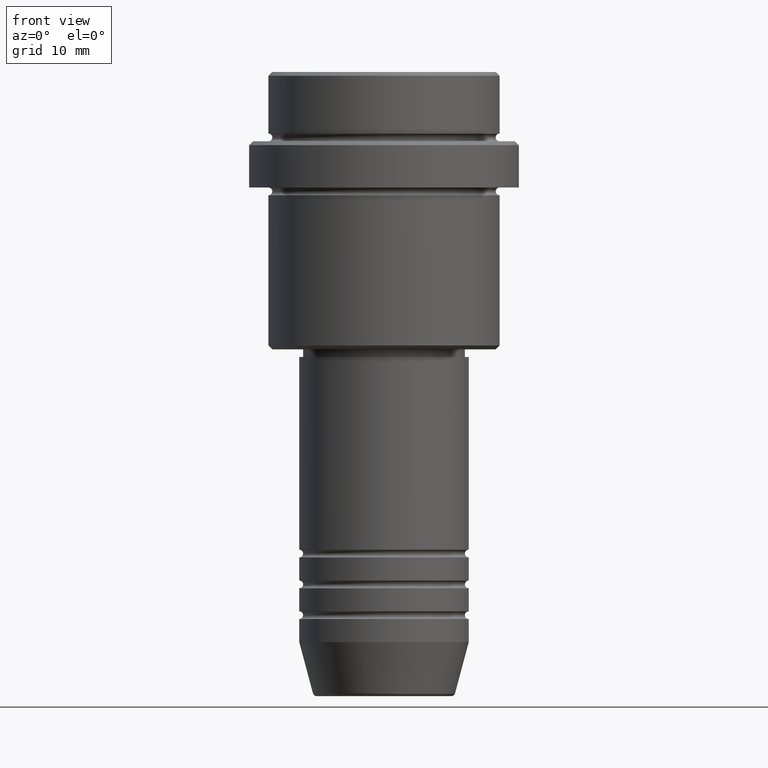
[diagram: clean part render]
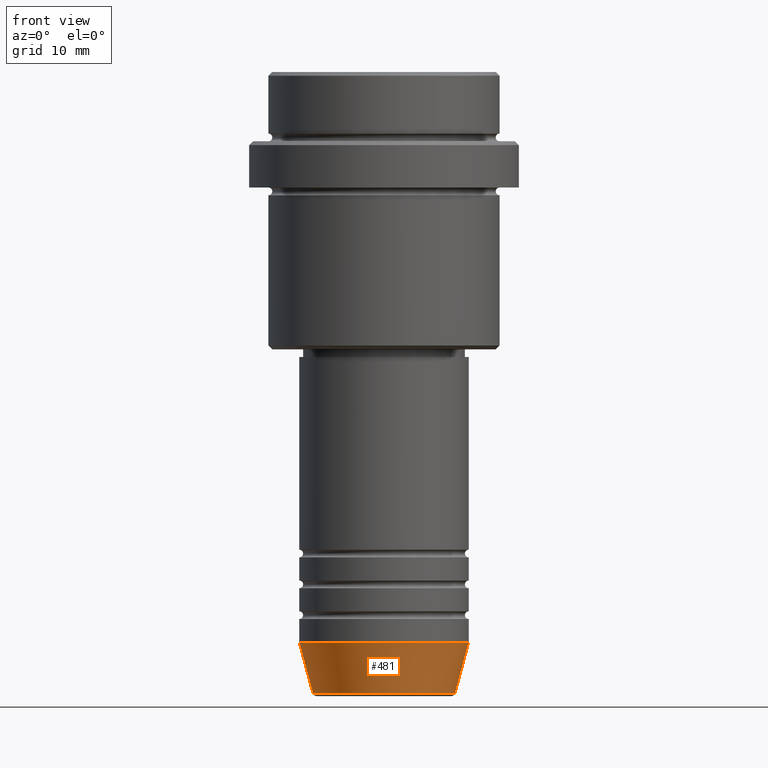
[diagram: same view with one face highlighted and labeled with its STEP entity id]
A machine part, front view. The second image highlights one B-rep face of the part: STEP entity #481.
In plain terms, the highlighted conical surface has half-angle 15 deg.
Its self-contained STEP definition (entity closure, byte-faithful):
#26 = CARTESIAN_POINT ( 'NONE',  ( 11.00000000000000000, 0.000000000000000000, -74.00000000000000000 ) ) ;
#50 = ORIENTED_EDGE ( 'NONE', *, *, #161, .F. ) ;
#129 = CONICAL_SURFACE ( 'NONE', #835, 11.00000000000000000, 0.2617993877991500740 ) ;
#144 = CARTESIAN_POINT ( 'NONE',  ( -11.00000000000000000, 1.347111479062088405E-15, -74.00000000000000000 ) ) ;
#153 = AXIS2_PLACEMENT_3D ( 'NONE', #332, #1180, #1073 ) ;
#161 = EDGE_CURVE ( 'NONE', #479, #1383, #693, .T. ) ;
#176 = CIRCLE ( 'NONE', #218, 9.223655072137194821 ) ;
#187 = DIRECTION ( 'NONE',  ( -0.000000000000000000, -0.000000000000000000, 1.000000000000000000 ) ) ;
#201 = DIRECTION ( 'NONE',  ( 1.000000000000000000, 0.000000000000000000, 0.000000000000000000 ) ) ;
#218 = AXIS2_PLACEMENT_3D ( 'NONE', #1372, #258, #270 ) ;
#241 = VECTOR ( 'NONE', #1236, 1000.000000000000000 ) ;
#258 = DIRECTION ( 'NONE',  ( -0.000000000000000000, -0.000000000000000000, 1.000000000000000000 ) ) ;
#270 = DIRECTION ( 'NONE',  ( 1.000000000000000000, 0.000000000000000000, 0.000000000000000000 ) ) ;
#301 = LINE ( 'NONE', #1169, #976 ) ;
#332 = CARTESIAN_POINT ( 'NONE',  ( 0.000000000000000000, 0.000000000000000000, -74.00000000000000000 ) ) ;
#435 = FACE_OUTER_BOUND ( 'NONE', #708, .T. ) ;
#479 = VERTEX_POINT ( 'NONE', #643 ) ;
#481 = ADVANCED_FACE ( 'NONE', ( #435 ), #129, .T. ) ;
#598 = ORIENTED_EDGE ( 'NONE', *, *, #1213, .T. ) ;
#643 = CARTESIAN_POINT ( 'NONE',  ( -9.223655072137194821, 1.238341722557647399E-15, -80.62940952255124216 ) ) ;
#693 = LINE ( 'NONE', #144, #241 ) ;
#708 = EDGE_LOOP ( 'NONE', ( #50, #1406, #598, #816 ) ) ;
#730 = CARTESIAN_POINT ( 'NONE',  ( 9.223655072137194821, 0.000000000000000000, -80.62940952255124216 ) ) ;
#772 = EDGE_CURVE ( 'NONE', #1383, #891, #975, .T. ) ;
#816 = ORIENTED_EDGE ( 'NONE', *, *, #772, .F. ) ;
#835 = AXIS2_PLACEMENT_3D ( 'NONE', #1288, #187, #201 ) ;
#891 = VERTEX_POINT ( 'NONE', #26 ) ;
#901 = DIRECTION ( 'NONE',  ( 0.2588190451025213501, 0.000000000000000000, 0.9659258262890680902 ) ) ;
#975 = CIRCLE ( 'NONE', #153, 11.00000000000000000 ) ;
#976 = VECTOR ( 'NONE', #901, 1000.000000000000000 ) ;
#1073 = DIRECTION ( 'NONE',  ( 1.000000000000000000, 0.000000000000000000, 0.000000000000000000 ) ) ;
#1169 = CARTESIAN_POINT ( 'NONE',  ( 11.00000000000000000, 0.000000000000000000, -74.00000000000000000 ) ) ;
#1180 = DIRECTION ( 'NONE',  ( -0.000000000000000000, -0.000000000000000000, 1.000000000000000000 ) ) ;
#1213 = EDGE_CURVE ( 'NONE', #1385, #891, #301, .T. ) ;
#1235 = EDGE_CURVE ( 'NONE', #479, #1385, #176, .T. ) ;
#1236 = DIRECTION ( 'NONE',  ( -0.2588190451025213501, 3.169619151431772337E-17, 0.9659258262890680902 ) ) ;
#1288 = CARTESIAN_POINT ( 'NONE',  ( 0.000000000000000000, 0.000000000000000000, -74.00000000000000000 ) ) ;
#1304 = CARTESIAN_POINT ( 'NONE',  ( -11.00000000000000000, 1.347111479062088405E-15, -74.00000000000000000 ) ) ;
#1372 = CARTESIAN_POINT ( 'NONE',  ( 0.000000000000000000, 0.000000000000000000, -80.62940952255124216 ) ) ;
#1383 = VERTEX_POINT ( 'NONE', #1304 ) ;
#1385 = VERTEX_POINT ( 'NONE', #730 ) ;
#1406 = ORIENTED_EDGE ( 'NONE', *, *, #1235, .T. ) ;